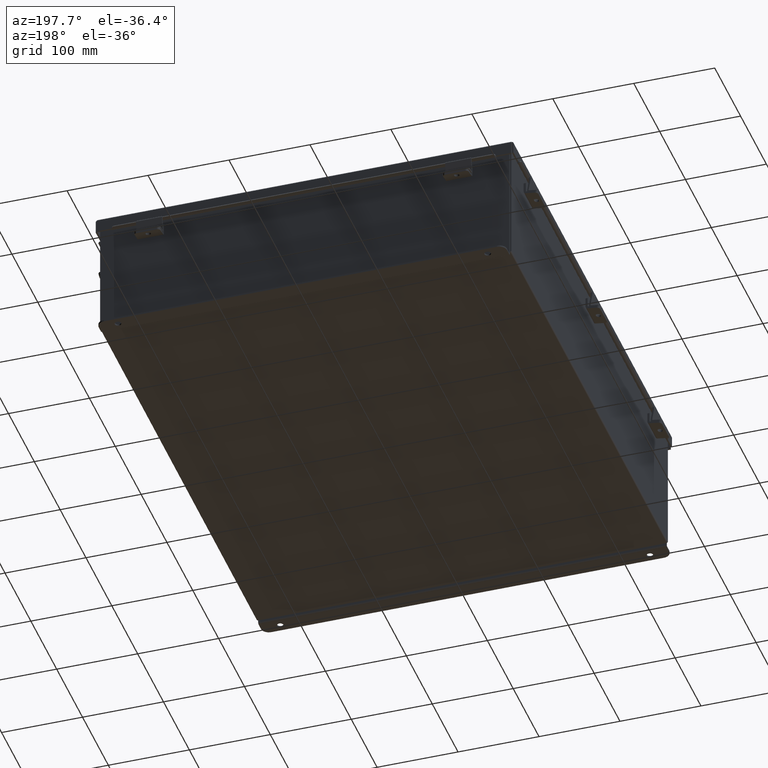
[diagram: clean part render]
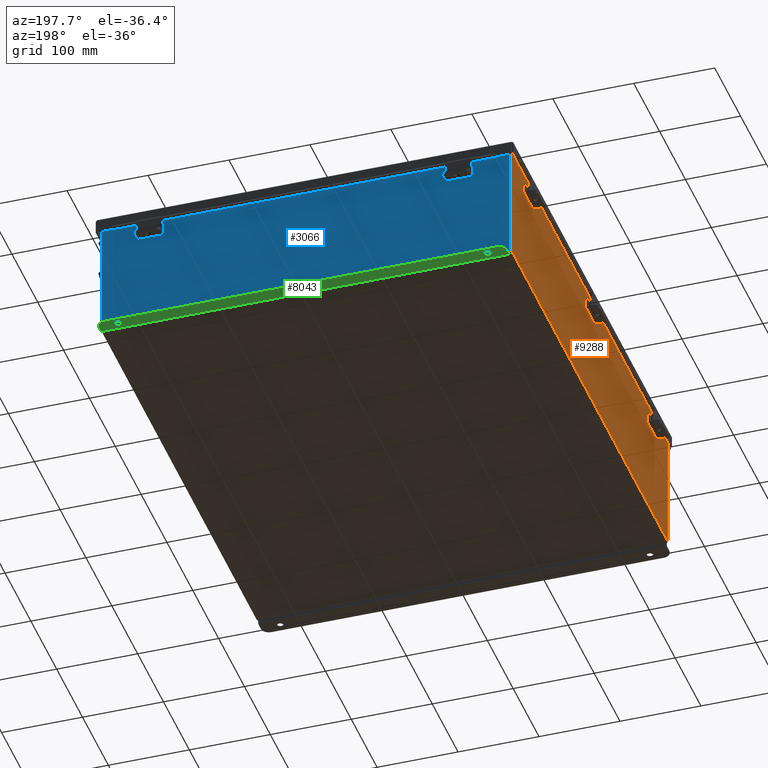
[diagram: same view with three faces highlighted in distinct colors, each labeled with its STEP entity id]
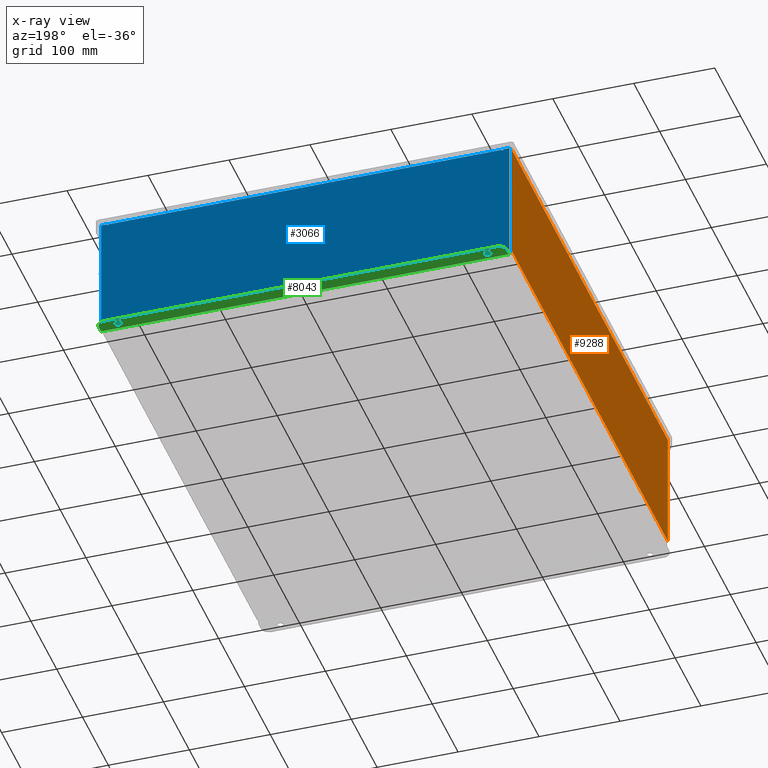
[diagram: x-ray of the same camera — body ghosted, the three highlighted faces saturated]
A machine part, auxiliary view with three faces highlighted in distinct colors.
The next image is the same camera in x-ray (body ghosted, the three faces saturated) — at least one of them is partly hidden behind the body in this view.
Their STEP definitions:

[orange] entity #9288 — the highlighted planar face has unit normal (1, 0, 0).
#99 = EDGE_CURVE ( 'NONE', #9982, #2198, #5953, .T. ) ;
#162 = CARTESIAN_POINT ( 'NONE',  ( -10.00000000000000000, 11.92529999999999600, 0.01299999999999985900 ) ) ;
#762 = LINE ( 'NONE', #9067, #1692 ) ;
#1173 = CARTESIAN_POINT ( 'NONE',  ( -10.00000000000002000, -11.92529999999999500, 5.837599999999999200 ) ) ;
#1243 = ORIENTED_EDGE ( 'NONE', *, *, #3204, .T. ) ;
#1692 = VECTOR ( 'NONE', #6394, 39.37007874015748100 ) ;
#2197 = VERTEX_POINT ( 'NONE', #1173 ) ;
#2198 = VERTEX_POINT ( 'NONE', #9649 ) ;
#2226 = CARTESIAN_POINT ( 'NONE',  ( -10.00000000000000000, -11.92530000000000000, -2.942712510675223700E-014 ) ) ;
#2426 = DIRECTION ( 'NONE',  ( -0.0000000000000000000, 1.000000000000000000, -0.0000000000000000000 ) ) ;
#2948 = PLANE ( 'NONE',  #5053 ) ;
#3026 = DIRECTION ( 'NONE',  ( -3.361929640444176300E-015, 3.735477378271307500E-016, 1.000000000000000000 ) ) ;
#3204 = EDGE_CURVE ( 'NONE', #2197, #9982, #762, .T. ) ;
#3461 = LINE ( 'NONE', #2226, #5227 ) ;
#3728 = DIRECTION ( 'NONE',  ( 3.361929640444175900E-015, 0.0000000000000000000, -1.000000000000000000 ) ) ;
#4540 = DIRECTION ( 'NONE',  ( 3.361929640444176300E-015, 0.0000000000000000000, -1.000000000000000000 ) ) ;
#5053 = AXIS2_PLACEMENT_3D ( 'NONE', #6006, #8394, #3728 ) ;
#5093 = ORIENTED_EDGE ( 'NONE', *, *, #7784, .F. ) ;
#5227 = VECTOR ( 'NONE', #3026, 39.37007874015748100 ) ;
#5830 = VECTOR ( 'NONE', #4540, 39.37007874015748100 ) ;
#5953 = LINE ( 'NONE', #8781, #5830 ) ;
#6006 = CARTESIAN_POINT ( 'NONE',  ( -10.00000000000000000, 0.0000000000000000000, -3.388345214641706500E-014 ) ) ;
#6394 = DIRECTION ( 'NONE',  ( 0.0000000000000000000, 1.000000000000000000, 0.0000000000000000000 ) ) ;
#6555 = FACE_OUTER_BOUND ( 'NONE', #7039, .T. ) ;
#6667 = VERTEX_POINT ( 'NONE', #9050 ) ;
#7039 = EDGE_LOOP ( 'NONE', ( #1243, #9834, #5093, #7103 ) ) ;
#7103 = ORIENTED_EDGE ( 'NONE', *, *, #7610, .T. ) ;
#7610 = EDGE_CURVE ( 'NONE', #6667, #2197, #3461, .T. ) ;
#7784 = EDGE_CURVE ( 'NONE', #6667, #2198, #8521, .T. ) ;
#7809 = CARTESIAN_POINT ( 'NONE',  ( -10.00000000000002000, 11.92529999999999600, 5.837599999999999200 ) ) ;
#8394 = DIRECTION ( 'NONE',  ( 1.000000000000000000, 0.0000000000000000000, 3.361929640444175900E-015 ) ) ;
#8521 = LINE ( 'NONE', #162, #9001 ) ;
#8781 = CARTESIAN_POINT ( 'NONE',  ( -10.00000000000000000, 11.92529999999999600, -3.388345214641706500E-014 ) ) ;
#9001 = VECTOR ( 'NONE', #2426, 39.37007874015748100 ) ;
#9050 = CARTESIAN_POINT ( 'NONE',  ( -10.00000000000000000, -11.92529999999999600, 0.01299999999999985900 ) ) ;
#9067 = CARTESIAN_POINT ( 'NONE',  ( -10.00000000000002000, -11.92529999999999600, 5.837599999999999200 ) ) ;
#9288 = ADVANCED_FACE ( 'NONE', ( #6555 ), #2948, .F. ) ;
#9649 = CARTESIAN_POINT ( 'NONE',  ( -10.00000000000000000, 11.92529999999999600, 0.01299999999999985900 ) ) ;
#9834 = ORIENTED_EDGE ( 'NONE', *, *, #99, .T. ) ;
#9982 = VERTEX_POINT ( 'NONE', #7809 ) ;

[blue] entity #3066 — the highlighted planar face has unit normal (0, -1, 0).
#79 = CARTESIAN_POINT ( 'NONE',  ( -9.600974999999998300, 0.0000000000000000000, 2.874949999999998300 ) ) ;
#240 = VECTOR ( 'NONE', #2377, 39.37007874015748100 ) ;
#478 = EDGE_LOOP ( 'NONE', ( #1765, #9582, #7778, #7108, #3630, #2893, #8142, #1725, #9569, #6083, #7144, #1562 ) ) ;
#853 = EDGE_CURVE ( 'NONE', #5161, #1907, #7611, .T. ) ;
#907 = VECTOR ( 'NONE', #2860, 39.37007874015748100 ) ;
#959 = LINE ( 'NONE', #6652, #4277 ) ;
#1030 = VERTEX_POINT ( 'NONE', #6968 ) ;
#1096 = LINE ( 'NONE', #7289, #2525 ) ;
#1109 = FACE_OUTER_BOUND ( 'NONE', #478, .T. ) ;
#1112 = AXIS2_PLACEMENT_3D ( 'NONE', #79, #9352, #8600 ) ;
#1213 = EDGE_CURVE ( 'NONE', #1907, #9293, #8316, .T. ) ;
#1214 = DIRECTION ( 'NONE',  ( 1.000000000000000000, 0.0000000000000000000, 0.0000000000000000000 ) ) ;
#1318 = CARTESIAN_POINT ( 'NONE',  ( -9.619649999999998300, 0.0000000000000000000, 2.925299999999999600 ) ) ;
#1358 = CARTESIAN_POINT ( 'NONE',  ( -9.925299999999996500, 0.0000000000000000000, -3.099299999999999900 ) ) ;
#1370 = AXIS2_PLACEMENT_3D ( 'NONE', #3045, #9132, #5103 ) ;
#1403 = EDGE_CURVE ( 'NONE', #5161, #5625, #9098, .T. ) ;
#1412 = CARTESIAN_POINT ( 'NONE',  ( 9.582300000000000000, 0.0000000000000000000, 2.874949999999998300 ) ) ;
#1562 = ORIENTED_EDGE ( 'NONE', *, *, #4229, .T. ) ;
#1578 = VERTEX_POINT ( 'NONE', #9620 ) ;
#1629 = LINE ( 'NONE', #1871, #6217 ) ;
#1725 = ORIENTED_EDGE ( 'NONE', *, *, #1403, .T. ) ;
#1765 = ORIENTED_EDGE ( 'NONE', *, *, #2530, .F. ) ;
#1832 = CARTESIAN_POINT ( 'NONE',  ( -9.619649999999998300, 0.0000000000000000000, 2.874949999999998300 ) ) ;
#1869 = EDGE_CURVE ( 'NONE', #9293, #5221, #2700, .T. ) ;
#1871 = CARTESIAN_POINT ( 'NONE',  ( -9.582299999999998300, 4.370956789862821100E-015, 2.912299999999998300 ) ) ;
#1907 = VERTEX_POINT ( 'NONE', #4833 ) ;
#2237 = DIRECTION ( 'NONE',  ( 0.0000000000000000000, -1.000000000000000000, 0.0000000000000000000 ) ) ;
#2377 = DIRECTION ( 'NONE',  ( -0.0000000000000000000, -0.0000000000000000000, 1.000000000000000000 ) ) ;
#2525 = VECTOR ( 'NONE', #3040, 39.37007874015748100 ) ;
#2530 = EDGE_CURVE ( 'NONE', #2934, #8761, #4557, .T. ) ;
#2700 = LINE ( 'NONE', #7954, #2999 ) ;
#2860 = DIRECTION ( 'NONE',  ( 0.0000000000000000000, 0.0000000000000000000, -1.000000000000000000 ) ) ;
#2893 = ORIENTED_EDGE ( 'NONE', *, *, #1213, .F. ) ;
#2923 = CARTESIAN_POINT ( 'NONE',  ( -9.582299999999998300, 4.370956789862821100E-015, 2.912299999999998300 ) ) ;
#2934 = VERTEX_POINT ( 'NONE', #1832 ) ;
#2999 = VECTOR ( 'NONE', #7241, 39.37007874015748100 ) ;
#3040 = DIRECTION ( 'NONE',  ( 0.0000000000000000000, 0.0000000000000000000, -1.000000000000000000 ) ) ;
#3045 = CARTESIAN_POINT ( 'NONE',  ( 9.600975000000000000, 0.0000000000000000000, 2.874949999999998300 ) ) ;
#3066 = ADVANCED_FACE ( 'NONE', ( #1109 ), #7883, .F. ) ;
#3630 = ORIENTED_EDGE ( 'NONE', *, *, #1869, .F. ) ;
#3676 = CARTESIAN_POINT ( 'NONE',  ( 9.582300000000001800, 0.0000000000000000000, 2.912299999999998300 ) ) ;
#3738 = CARTESIAN_POINT ( 'NONE',  ( -9.619649999999998300, 0.0000000000000000000, 0.0000000000000000000 ) ) ;
#4229 = EDGE_CURVE ( 'NONE', #6497, #8761, #7410, .T. ) ;
#4277 = VECTOR ( 'NONE', #8219, 39.37007874015748100 ) ;
#4332 = VECTOR ( 'NONE', #6055, 39.37007874015748100 ) ;
#4557 = LINE ( 'NONE', #3738, #4332 ) ;
#4628 = CARTESIAN_POINT ( 'NONE',  ( -9.925299999999998200, 0.0000000000000000000, 2.925299999999999600 ) ) ;
#4638 = EDGE_CURVE ( 'NONE', #8865, #1578, #1096, .T. ) ;
#4668 = EDGE_CURVE ( 'NONE', #1578, #2934, #4914, .T. ) ;
#4767 = DIRECTION ( 'NONE',  ( 0.0000000000000000000, 0.0000000000000000000, -1.000000000000000000 ) ) ;
#4833 = CARTESIAN_POINT ( 'NONE',  ( 9.619650000000001800, 0.0000000000000000000, 2.874949999999998300 ) ) ;
#4914 = CIRCLE ( 'NONE', #1112, 0.01867500000000003900 ) ;
#4933 = LINE ( 'NONE', #7497, #907 ) ;
#5103 = DIRECTION ( 'NONE',  ( 0.0000000000000000000, 0.0000000000000000000, -1.000000000000000000 ) ) ;
#5161 = VERTEX_POINT ( 'NONE', #7756 ) ;
#5221 = VERTEX_POINT ( 'NONE', #3676 ) ;
#5269 = CARTESIAN_POINT ( 'NONE',  ( -9.925299999999998200, 0.0000000000000000000, 2.925299999999999600 ) ) ;
#5433 = DIRECTION ( 'NONE',  ( 0.0000000000000000000, -0.0000000000000000000, -1.000000000000000000 ) ) ;
#5511 = EDGE_CURVE ( 'NONE', #8865, #5221, #1629, .T. ) ;
#5625 = VERTEX_POINT ( 'NONE', #6769 ) ;
#5811 = CARTESIAN_POINT ( 'NONE',  ( -9.925299999999998200, 0.0000000000000000000, 2.925299999999999600 ) ) ;
#6024 = DIRECTION ( 'NONE',  ( 1.000000000000000000, 0.0000000000000000000, 0.0000000000000000000 ) ) ;
#6055 = DIRECTION ( 'NONE',  ( 0.0000000000000000000, 0.0000000000000000000, 1.000000000000000000 ) ) ;
#6058 = AXIS2_PLACEMENT_3D ( 'NONE', #8645, #2237, #5433 ) ;
#6083 = ORIENTED_EDGE ( 'NONE', *, *, #6596, .F. ) ;
#6158 = VECTOR ( 'NONE', #1214, 39.37007874015748100 ) ;
#6217 = VECTOR ( 'NONE', #6024, 39.37007874015748100 ) ;
#6266 = VECTOR ( 'NONE', #9691, 39.37007874015748100 ) ;
#6270 = EDGE_CURVE ( 'NONE', #6727, #6497, #9892, .T. ) ;
#6497 = VERTEX_POINT ( 'NONE', #8154 ) ;
#6596 = EDGE_CURVE ( 'NONE', #6727, #1030, #959, .T. ) ;
#6652 = CARTESIAN_POINT ( 'NONE',  ( -9.925299999999998200, 0.0000000000000000000, -3.099299999999999900 ) ) ;
#6727 = VERTEX_POINT ( 'NONE', #1358 ) ;
#6769 = CARTESIAN_POINT ( 'NONE',  ( 9.925300000000001800, 0.0000000000000000000, 2.925299999999999600 ) ) ;
#6968 = CARTESIAN_POINT ( 'NONE',  ( 9.925300000000001800, 0.0000000000000000000, -3.099299999999999900 ) ) ;
#7108 = ORIENTED_EDGE ( 'NONE', *, *, #5511, .T. ) ;
#7144 = ORIENTED_EDGE ( 'NONE', *, *, #6270, .T. ) ;
#7241 = DIRECTION ( 'NONE',  ( 0.0000000000000000000, 0.0000000000000000000, 1.000000000000000000 ) ) ;
#7289 = CARTESIAN_POINT ( 'NONE',  ( -9.582299999999998300, 0.0000000000000000000, 0.0000000000000000000 ) ) ;
#7410 = LINE ( 'NONE', #5811, #6266 ) ;
#7497 = CARTESIAN_POINT ( 'NONE',  ( 9.925300000000001800, 0.0000000000000000000, 2.925299999999999600 ) ) ;
#7611 = LINE ( 'NONE', #8745, #8621 ) ;
#7756 = CARTESIAN_POINT ( 'NONE',  ( 9.619650000000001800, 0.0000000000000000000, 2.925299999999999600 ) ) ;
#7778 = ORIENTED_EDGE ( 'NONE', *, *, #4638, .F. ) ;
#7883 = PLANE ( 'NONE',  #6058 ) ;
#7954 = CARTESIAN_POINT ( 'NONE',  ( 9.582300000000001800, 0.0000000000000000000, 0.0000000000000000000 ) ) ;
#8142 = ORIENTED_EDGE ( 'NONE', *, *, #853, .F. ) ;
#8154 = CARTESIAN_POINT ( 'NONE',  ( -9.925299999999998200, 0.0000000000000000000, 2.925299999999999600 ) ) ;
#8219 = DIRECTION ( 'NONE',  ( 1.000000000000000000, -0.0000000000000000000, -0.0000000000000000000 ) ) ;
#8316 = CIRCLE ( 'NONE', #1370, 0.01867500000000003900 ) ;
#8600 = DIRECTION ( 'NONE',  ( 0.0000000000000000000, 0.0000000000000000000, -1.000000000000000000 ) ) ;
#8621 = VECTOR ( 'NONE', #4767, 39.37007874015748100 ) ;
#8645 = CARTESIAN_POINT ( 'NONE',  ( 0.0000000000000000000, 0.0000000000000000000, 0.0000000000000000000 ) ) ;
#8745 = CARTESIAN_POINT ( 'NONE',  ( 9.619650000000001800, 0.0000000000000000000, 0.0000000000000000000 ) ) ;
#8761 = VERTEX_POINT ( 'NONE', #1318 ) ;
#8865 = VERTEX_POINT ( 'NONE', #2923 ) ;
#9098 = LINE ( 'NONE', #5269, #6158 ) ;
#9132 = DIRECTION ( 'NONE',  ( -0.0000000000000000000, 1.000000000000000000, -0.0000000000000000000 ) ) ;
#9293 = VERTEX_POINT ( 'NONE', #1412 ) ;
#9352 = DIRECTION ( 'NONE',  ( -0.0000000000000000000, 1.000000000000000000, -0.0000000000000000000 ) ) ;
#9569 = ORIENTED_EDGE ( 'NONE', *, *, #9776, .T. ) ;
#9582 = ORIENTED_EDGE ( 'NONE', *, *, #4668, .F. ) ;
#9620 = CARTESIAN_POINT ( 'NONE',  ( -9.582299999999998300, 0.0000000000000000000, 2.874949999999998300 ) ) ;
#9691 = DIRECTION ( 'NONE',  ( 1.000000000000000000, 0.0000000000000000000, 0.0000000000000000000 ) ) ;
#9776 = EDGE_CURVE ( 'NONE', #5625, #1030, #4933, .T. ) ;
#9892 = LINE ( 'NONE', #4628, #240 ) ;

[green] entity #8043 — the highlighted planar face has unit normal (0, 0, 1).
#42 = CARTESIAN_POINT ( 'NONE',  ( -8.987799999999994700, 0.2068000000000006800, -3.187000000000000700 ) ) ;
#46 = DIRECTION ( 'NONE',  ( 0.0000000000000000000, 1.000000000000000000, -3.502369222646487000E-015 ) ) ;
#521 = VERTEX_POINT ( 'NONE', #5676 ) ;
#537 = CARTESIAN_POINT ( 'NONE',  ( 8.987800000000001800, 0.3628000000000008400, -3.187000000000001200 ) ) ;
#539 = DIRECTION ( 'NONE',  ( 0.0000000000000000000, -1.000000000000000000, 3.702694488566362300E-015 ) ) ;
#570 = DIRECTION ( 'NONE',  ( 0.0000000000000000000, -1.000000000000000000, 4.370956789862820400E-015 ) ) ;
#982 = AXIS2_PLACEMENT_3D ( 'NONE', #1346, #6736, #2097 ) ;
#1074 = ORIENTED_EDGE ( 'NONE', *, *, #9237, .F. ) ;
#1284 = EDGE_CURVE ( 'NONE', #7397, #3820, #6725, .T. ) ;
#1286 = DIRECTION ( 'NONE',  ( 0.0000000000000000000, 1.000000000000000000, -3.502369222646487000E-015 ) ) ;
#1289 = VERTEX_POINT ( 'NONE', #4740 ) ;
#1346 = CARTESIAN_POINT ( 'NONE',  ( -8.987799999999994700, 0.3628000000000008400, -3.187000000000001200 ) ) ;
#1383 = ORIENTED_EDGE ( 'NONE', *, *, #9888, .F. ) ;
#1495 = CARTESIAN_POINT ( 'NONE',  ( 9.925300000000001800, 0.01300000000000010700, -3.187000000000000300 ) ) ;
#1818 = FACE_BOUND ( 'NONE', #8514, .T. ) ;
#2097 = DIRECTION ( 'NONE',  ( 0.0000000000000000000, 1.000000000000000000, -3.502369222646487000E-015 ) ) ;
#2408 = CARTESIAN_POINT ( 'NONE',  ( 8.987800000000001800, 0.5188000000000010400, -3.187000000000001600 ) ) ;
#2900 = PLANE ( 'NONE',  #5730 ) ;
#2966 = DIRECTION ( 'NONE',  ( 0.0000000000000000000, -3.702694488566362300E-015, -1.000000000000000000 ) ) ;
#3033 = VERTEX_POINT ( 'NONE', #5810 ) ;
#3046 = CARTESIAN_POINT ( 'NONE',  ( -9.550299999999998200, 0.3628000000000008400, -3.187000000000001200 ) ) ;
#3137 = EDGE_LOOP ( 'NONE', ( #6402, #8889, #8940, #7370, #7751, #5968 ) ) ;
#3143 = EDGE_CURVE ( 'NONE', #7397, #521, #8618, .T. ) ;
#3199 = EDGE_LOOP ( 'NONE', ( #4215, #1383 ) ) ;
#3430 = EDGE_CURVE ( 'NONE', #4385, #521, #8258, .T. ) ;
#3679 = DIRECTION ( 'NONE',  ( 0.0000000000000000000, -1.000000000000000000, 3.702694488566362300E-015 ) ) ;
#3694 = CARTESIAN_POINT ( 'NONE',  ( 9.925300000000001800, -1.092739197465705300E-014, -3.187000000000000300 ) ) ;
#3804 = DIRECTION ( 'NONE',  ( 0.0000000000000000000, -1.000000000000000000, 4.370956789862820400E-015 ) ) ;
#3820 = VERTEX_POINT ( 'NONE', #3952 ) ;
#3952 = CARTESIAN_POINT ( 'NONE',  ( -9.925299999999998200, 0.3628000000000008400, -3.187000000000001200 ) ) ;
#4030 = CIRCLE ( 'NONE', #6797, 0.1560000000000001900 ) ;
#4215 = ORIENTED_EDGE ( 'NONE', *, *, #8730, .F. ) ;
#4374 = CARTESIAN_POINT ( 'NONE',  ( -9.925299999999998200, -1.092739197465705300E-014, -3.187000000000000300 ) ) ;
#4385 = VERTEX_POINT ( 'NONE', #8859 ) ;
#4448 = VECTOR ( 'NONE', #539, 39.37007874015748100 ) ;
#4599 = DIRECTION ( 'NONE',  ( 0.0000000000000000000, -3.702694488566362300E-015, -1.000000000000000000 ) ) ;
#4716 = VERTEX_POINT ( 'NONE', #8992 ) ;
#4740 = CARTESIAN_POINT ( 'NONE',  ( 9.550300000000001800, 0.7377999999999989000, -3.187000000000002900 ) ) ;
#5090 = CARTESIAN_POINT ( 'NONE',  ( 0.0000000000000000000, 0.7377999999999989000, -3.187000000000002900 ) ) ;
#5112 = DIRECTION ( 'NONE',  ( -0.0000000000000000000, -3.702694488566362300E-015, -1.000000000000000000 ) ) ;
#5192 = CIRCLE ( 'NONE', #982, 0.1560000000000001900 ) ;
#5428 = VERTEX_POINT ( 'NONE', #42 ) ;
#5676 = CARTESIAN_POINT ( 'NONE',  ( 9.925300000000001800, 0.01300000000000010700, -3.187000000000000300 ) ) ;
#5730 = AXIS2_PLACEMENT_3D ( 'NONE', #7544, #8337, #3679 ) ;
#5810 = CARTESIAN_POINT ( 'NONE',  ( 8.987800000000001800, 0.2068000000000006800, -3.187000000000000700 ) ) ;
#5817 = CIRCLE ( 'NONE', #9339, 0.3750000000000000600 ) ;
#5876 = DIRECTION ( 'NONE',  ( 0.0000000000000000000, -3.702694488566362300E-015, -1.000000000000000000 ) ) ;
#5923 = CIRCLE ( 'NONE', #9733, 0.3750000000000000600 ) ;
#5968 = ORIENTED_EDGE ( 'NONE', *, *, #8209, .T. ) ;
#6117 = CARTESIAN_POINT ( 'NONE',  ( -9.550299999999998200, 0.7377999999999989000, -3.187000000000002900 ) ) ;
#6296 = CIRCLE ( 'NONE', #7827, 0.1560000000000001900 ) ;
#6402 = ORIENTED_EDGE ( 'NONE', *, *, #9715, .T. ) ;
#6526 = FACE_BOUND ( 'NONE', #3199, .T. ) ;
#6677 = CARTESIAN_POINT ( 'NONE',  ( -9.925299999999996500, 0.01300000000000010700, -3.187000000000000300 ) ) ;
#6688 = DIRECTION ( 'NONE',  ( 1.000000000000000000, 0.0000000000000000000, -0.0000000000000000000 ) ) ;
#6725 = LINE ( 'NONE', #4374, #9814 ) ;
#6736 = DIRECTION ( 'NONE',  ( 0.0000000000000000000, -3.702694488566362300E-015, -1.000000000000000000 ) ) ;
#6797 = AXIS2_PLACEMENT_3D ( 'NONE', #537, #5876, #1286 ) ;
#6999 = VERTEX_POINT ( 'NONE', #2408 ) ;
#7272 = CIRCLE ( 'NONE', #9886, 0.1560000000000001900 ) ;
#7276 = VECTOR ( 'NONE', #6688, 39.37007874015748100 ) ;
#7347 = DIRECTION ( 'NONE',  ( 0.0000000000000000000, 1.000000000000000000, -3.702694488566362300E-015 ) ) ;
#7370 = ORIENTED_EDGE ( 'NONE', *, *, #3143, .F. ) ;
#7397 = VERTEX_POINT ( 'NONE', #6677 ) ;
#7514 = FACE_OUTER_BOUND ( 'NONE', #3137, .T. ) ;
#7544 = CARTESIAN_POINT ( 'NONE',  ( 0.0000000000000000000, -1.092739197465705300E-014, -3.187000000000000300 ) ) ;
#7600 = CARTESIAN_POINT ( 'NONE',  ( 8.987800000000001800, 0.3628000000000008400, -3.187000000000001200 ) ) ;
#7751 = ORIENTED_EDGE ( 'NONE', *, *, #1284, .T. ) ;
#7763 = ORIENTED_EDGE ( 'NONE', *, *, #8281, .F. ) ;
#7827 = AXIS2_PLACEMENT_3D ( 'NONE', #7600, #2966, #8411 ) ;
#7943 = DIRECTION ( 'NONE',  ( 1.000000000000000000, -0.0000000000000000000, -0.0000000000000000000 ) ) ;
#8043 = ADVANCED_FACE ( 'NONE', ( #1818, #6526, #7514 ), #2900, .F. ) ;
#8209 = EDGE_CURVE ( 'NONE', #3820, #9358, #5923, .T. ) ;
#8258 = LINE ( 'NONE', #3694, #4448 ) ;
#8281 = EDGE_CURVE ( 'NONE', #5428, #4716, #7272, .T. ) ;
#8337 = DIRECTION ( 'NONE',  ( 0.0000000000000000000, 3.702694488566362300E-015, 1.000000000000000000 ) ) ;
#8411 = DIRECTION ( 'NONE',  ( 0.0000000000000000000, 1.000000000000000000, -3.502369222646487000E-015 ) ) ;
#8473 = DIRECTION ( 'NONE',  ( -0.0000000000000000000, -3.702694488566362300E-015, -1.000000000000000000 ) ) ;
#8514 = EDGE_LOOP ( 'NONE', ( #1074, #7763 ) ) ;
#8618 = LINE ( 'NONE', #1495, #9795 ) ;
#8730 = EDGE_CURVE ( 'NONE', #6999, #3033, #4030, .T. ) ;
#8744 = EDGE_CURVE ( 'NONE', #1289, #4385, #5817, .T. ) ;
#8859 = CARTESIAN_POINT ( 'NONE',  ( 9.925300000000001800, 0.3628000000000008400, -3.187000000000001200 ) ) ;
#8889 = ORIENTED_EDGE ( 'NONE', *, *, #8744, .T. ) ;
#8940 = ORIENTED_EDGE ( 'NONE', *, *, #3430, .T. ) ;
#8992 = CARTESIAN_POINT ( 'NONE',  ( -8.987799999999994700, 0.5188000000000010400, -3.187000000000001600 ) ) ;
#9237 = EDGE_CURVE ( 'NONE', #4716, #5428, #5192, .T. ) ;
#9287 = CARTESIAN_POINT ( 'NONE',  ( -8.987799999999994700, 0.3628000000000008400, -3.187000000000001200 ) ) ;
#9339 = AXIS2_PLACEMENT_3D ( 'NONE', #9815, #5112, #570 ) ;
#9358 = VERTEX_POINT ( 'NONE', #6117 ) ;
#9367 = LINE ( 'NONE', #5090, #7276 ) ;
#9715 = EDGE_CURVE ( 'NONE', #9358, #1289, #9367, .T. ) ;
#9733 = AXIS2_PLACEMENT_3D ( 'NONE', #3046, #8473, #3804 ) ;
#9795 = VECTOR ( 'NONE', #7943, 39.37007874015748100 ) ;
#9814 = VECTOR ( 'NONE', #7347, 39.37007874015748100 ) ;
#9815 = CARTESIAN_POINT ( 'NONE',  ( 9.550300000000001800, 0.3628000000000008400, -3.187000000000001200 ) ) ;
#9886 = AXIS2_PLACEMENT_3D ( 'NONE', #9287, #4599, #46 ) ;
#9888 = EDGE_CURVE ( 'NONE', #3033, #6999, #6296, .T. ) ;